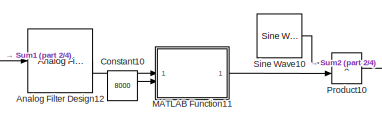
[diagram: root canvas - part 1/4, top center region]
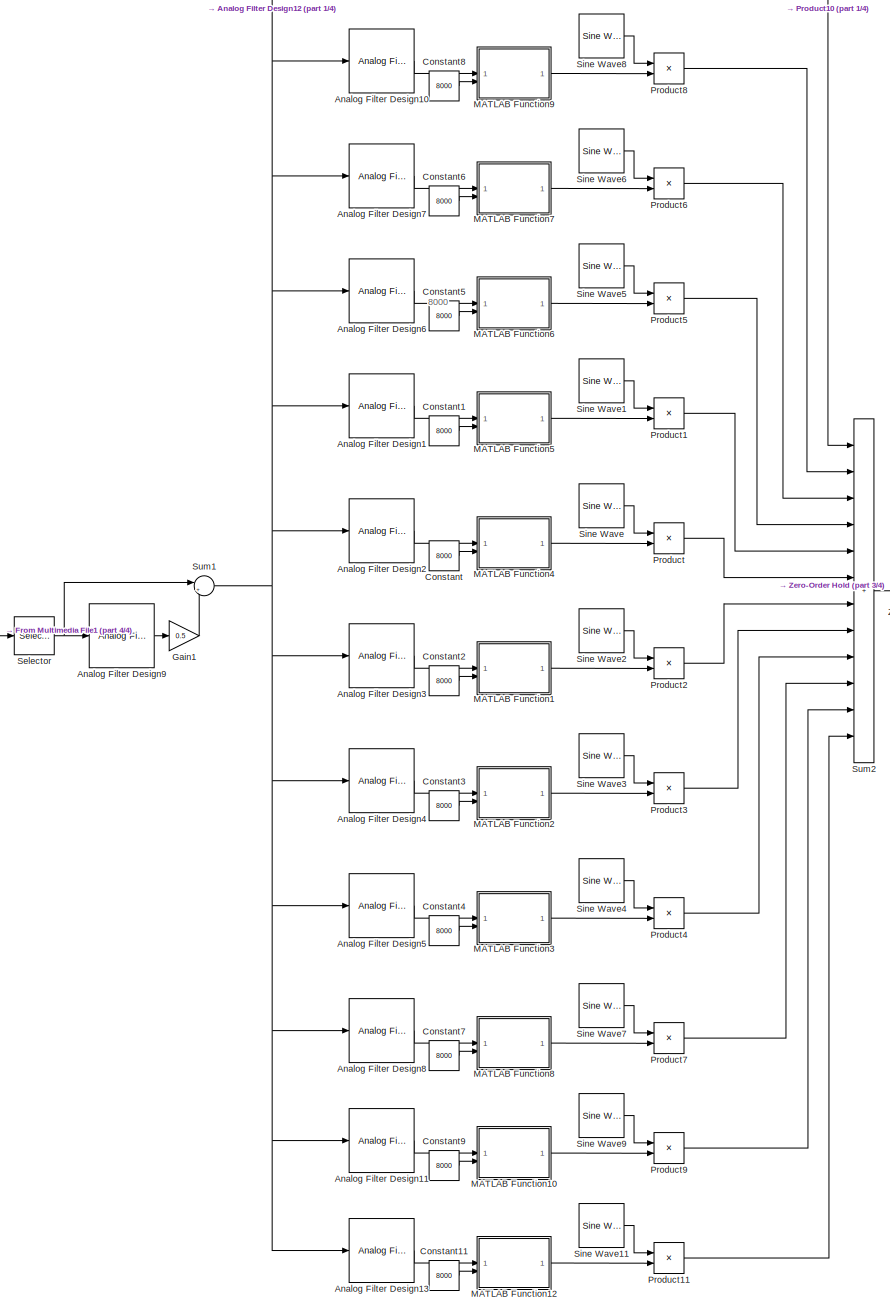
[diagram: root canvas - part 2/4, center side, full height]
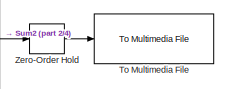
[diagram: root canvas - part 3/4, middle right region]
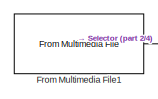
[diagram: root canvas - part 4/4, middle left region]
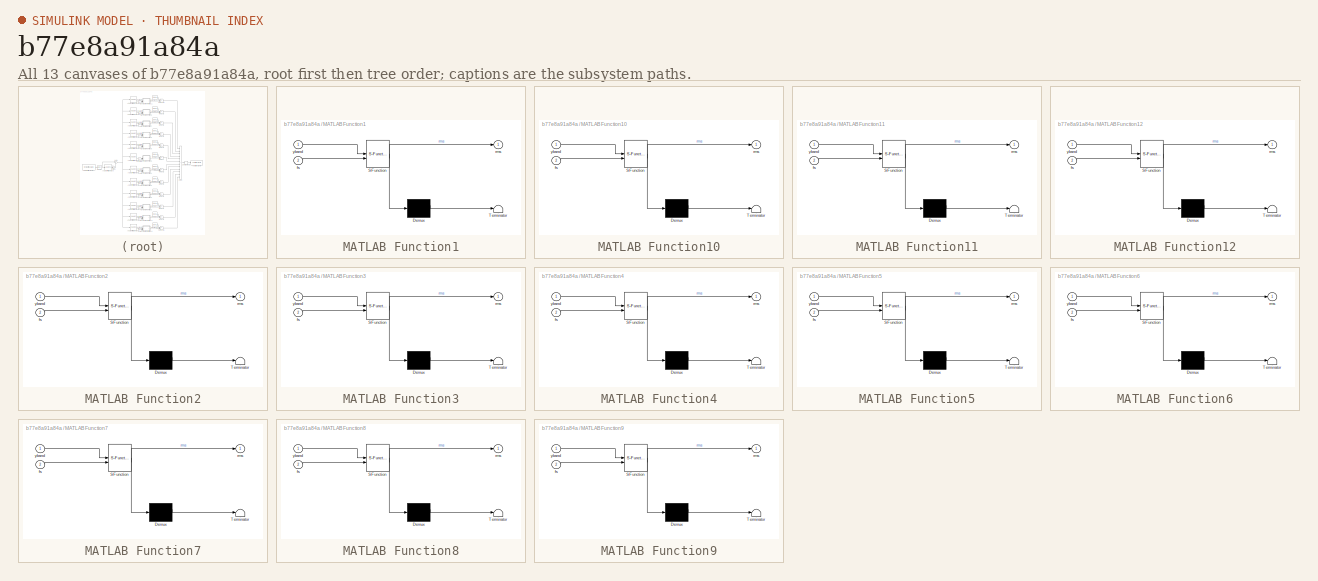
[diagram: thumbnail index - all 13 canvases of the model, root first then tree order]
MODEL slx_b77e8a91a84a
KIND model
CONFIG AbsTol = auto
CONFIG EnableMultiTasking = off
CONFIG FixedStep = auto
CONFIG MaxStep = auto
CONFIG MinStep = auto
CONFIG RelTol = 1e-3
CONFIG SampleTimeConstraint = Unconstrained
CONFIG SolverName = ode23tb
CONFIG StartTime = 0.0
CONFIG StopTime = 3
BLOCK [Reference] Analog Filter Design1  REF=dspfdesign/Analog
Filter Design
  SourceBlock = dspfdesign/Analog\nFilter Design
  SourceType = Analog Filter Design
BLOCK [Reference] Analog Filter Design10  REF=dspfdesign/Analog
Filter Design
  SourceBlock = dspfdesign/Analog\nFilter Design
  SourceType = Analog Filter Design
BLOCK [Reference] Analog Filter Design11  REF=dspfdesign/Analog
Filter Design
  SourceBlock = dspfdesign/Analog\nFilter Design
  SourceType = Analog Filter Design
BLOCK [Reference] Analog Filter Design12  REF=dspfdesign/Analog
Filter Design
  SourceBlock = dspfdesign/Analog\nFilter Design
  SourceType = Analog Filter Design
BLOCK [Reference] Analog Filter Design13  REF=dspfdesign/Analog
Filter Design
  SourceBlock = dspfdesign/Analog\nFilter Design
  SourceType = Analog Filter Design
BLOCK [Reference] Analog Filter Design2  REF=dspfdesign/Analog
Filter Design
  SourceBlock = dspfdesign/Analog\nFilter Design
  SourceType = Analog Filter Design
BLOCK [Reference] Analog Filter Design3  REF=dspfdesign/Analog
Filter Design
  SourceBlock = dspfdesign/Analog\nFilter Design
  SourceType = Analog Filter Design
BLOCK [Reference] Analog Filter Design4  REF=dspfdesign/Analog
Filter Design
  SourceBlock = dspfdesign/Analog\nFilter Design
  SourceType = Analog Filter Design
BLOCK [Reference] Analog Filter Design5  REF=dspfdesign/Analog
Filter Design
  SourceBlock = dspfdesign/Analog\nFilter Design
  SourceType = Analog Filter Design
BLOCK [Reference] Analog Filter Design6  REF=dspfdesign/Analog
Filter Design
  SourceBlock = dspfdesign/Analog\nFilter Design
  SourceType = Analog Filter Design
BLOCK [Reference] Analog Filter Design7  REF=dspfdesign/Analog
Filter Design
  SourceBlock = dspfdesign/Analog\nFilter Design
  SourceType = Analog Filter Design
BLOCK [Reference] Analog Filter Design8  REF=dspfdesign/Analog
Filter Design
  SourceBlock = dspfdesign/Analog\nFilter Design
  SourceType = Analog Filter Design
BLOCK [Reference] Analog Filter Design9  REF=dspfdesign/Analog
Filter Design
  SourceBlock = dspfdesign/Analog\nFilter Design
  SourceType = Analog Filter Design
BLOCK [Constant] Constant
  Value = 8000
BLOCK [Constant] Constant1
  Value = 8000
BLOCK [Constant] Constant10
  Value = 8000
BLOCK [Constant] Constant11
  Value = 8000
BLOCK [Constant] Constant2
  Value = 8000
BLOCK [Constant] Constant3
  Value = 8000
BLOCK [Constant] Constant4
  Value = 8000
BLOCK [Constant] Constant5
  Value = 8000
BLOCK [Constant] Constant6
  Value = 8000
BLOCK [Constant] Constant7
  Value = 8000
BLOCK [Constant] Constant8
  Value = 8000
BLOCK [Constant] Constant9
  Value = 8000
BLOCK [Reference] From Multimedia File1  REF=dspvision/From Multimedia File
  LibrarySourceBlock = dspsrcs4/From Multimedia File
  SourceBlock = dspvision/From Multimedia File
  SourceType = From Multimedia File
BLOCK [Gain] Gain1
  Gain = 0.5
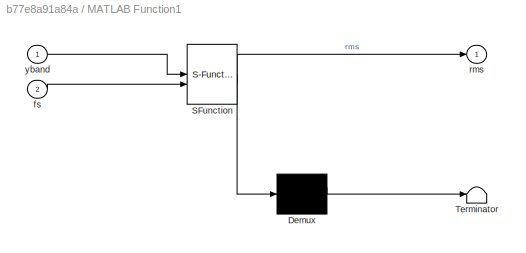
BLOCK [SubSystem] MATLAB Function1
  ErrorFcn = Stateflow.Translate.translate
  PermitHierarchicalResolution = ExplicitOnly
  SFBlockType = MATLAB Function
  TreatAsAtomicUnit = on
BLOCK [Demux] MATLAB Function1/ Demux 
  Outputs = 1
BLOCK [S-Function] MATLAB Function1/ SFunction 
  EnableBusSupport = on
  FunctionName = sf_sfun
  PortCounts = [2 2]
  SFcnIsStateOwnerBlock = off
  SFunctionDeploymentMode = off
  Tag = Stateflow S-Function 1
BLOCK [Terminator] MATLAB Function1/ Terminator 
BLOCK [Inport] MATLAB Function1/fs
  Port = 2
BLOCK [Outport] MATLAB Function1/rms
BLOCK [Inport] MATLAB Function1/yband
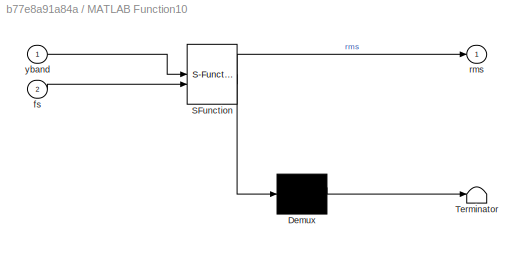
BLOCK [SubSystem] MATLAB Function10
  ErrorFcn = Stateflow.Translate.translate
  PermitHierarchicalResolution = ExplicitOnly
  SFBlockType = MATLAB Function
  TreatAsAtomicUnit = on
BLOCK [Demux] MATLAB Function10/ Demux 
  Outputs = 1
BLOCK [S-Function] MATLAB Function10/ SFunction 
  EnableBusSupport = on
  FunctionName = sf_sfun
  PortCounts = [2 2]
  SFcnIsStateOwnerBlock = off
  SFunctionDeploymentMode = off
  Tag = Stateflow S-Function 10
BLOCK [Terminator] MATLAB Function10/ Terminator 
BLOCK [Inport] MATLAB Function10/fs
  Port = 2
BLOCK [Outport] MATLAB Function10/rms
BLOCK [Inport] MATLAB Function10/yband
BLOCK [SubSystem] MATLAB Function11
  ErrorFcn = Stateflow.Translate.translate
  PermitHierarchicalResolution = ExplicitOnly
  SFBlockType = MATLAB Function
  TreatAsAtomicUnit = on
BLOCK [Demux] MATLAB Function11/ Demux 
  Outputs = 1
BLOCK [S-Function] MATLAB Function11/ SFunction 
  EnableBusSupport = on
  FunctionName = sf_sfun
  PortCounts = [2 2]
  SFcnIsStateOwnerBlock = off
  SFunctionDeploymentMode = off
  Tag = Stateflow S-Function 11
BLOCK [Terminator] MATLAB Function11/ Terminator 
BLOCK [Inport] MATLAB Function11/fs
  Port = 2
BLOCK [Outport] MATLAB Function11/rms
BLOCK [Inport] MATLAB Function11/yband
BLOCK [SubSystem] MATLAB Function12
  ErrorFcn = Stateflow.Translate.translate
  PermitHierarchicalResolution = ExplicitOnly
  SFBlockType = MATLAB Function
  TreatAsAtomicUnit = on
BLOCK [Demux] MATLAB Function12/ Demux 
  Outputs = 1
BLOCK [S-Function] MATLAB Function12/ SFunction 
  EnableBusSupport = on
  FunctionName = sf_sfun
  PortCounts = [2 2]
  SFcnIsStateOwnerBlock = off
  SFunctionDeploymentMode = off
  Tag = Stateflow S-Function 12
BLOCK [Terminator] MATLAB Function12/ Terminator 
BLOCK [Inport] MATLAB Function12/fs
  Port = 2
BLOCK [Outport] MATLAB Function12/rms
BLOCK [Inport] MATLAB Function12/yband
BLOCK [SubSystem] MATLAB Function2
  ErrorFcn = Stateflow.Translate.translate
  PermitHierarchicalResolution = ExplicitOnly
  SFBlockType = MATLAB Function
  TreatAsAtomicUnit = on
BLOCK [Demux] MATLAB Function2/ Demux 
  Outputs = 1
BLOCK [S-Function] MATLAB Function2/ SFunction 
  EnableBusSupport = on
  FunctionName = sf_sfun
  PortCounts = [2 2]
  SFcnIsStateOwnerBlock = off
  SFunctionDeploymentMode = off
  Tag = Stateflow S-Function 2
BLOCK [Terminator] MATLAB Function2/ Terminator 
BLOCK [Inport] MATLAB Function2/fs
  Port = 2
BLOCK [Outport] MATLAB Function2/rms
BLOCK [Inport] MATLAB Function2/yband
BLOCK [SubSystem] MATLAB Function3
  ErrorFcn = Stateflow.Translate.translate
  PermitHierarchicalResolution = ExplicitOnly
  SFBlockType = MATLAB Function
  TreatAsAtomicUnit = on
BLOCK [Demux] MATLAB Function3/ Demux 
  Outputs = 1
BLOCK [S-Function] MATLAB Function3/ SFunction 
  EnableBusSupport = on
  FunctionName = sf_sfun
  PortCounts = [2 2]
  SFcnIsStateOwnerBlock = off
  SFunctionDeploymentMode = off
  Tag = Stateflow S-Function 3
BLOCK [Terminator] MATLAB Function3/ Terminator 
BLOCK [Inport] MATLAB Function3/fs
  Port = 2
BLOCK [Outport] MATLAB Function3/rms
BLOCK [Inport] MATLAB Function3/yband
BLOCK [SubSystem] MATLAB Function4
  ErrorFcn = Stateflow.Translate.translate
  PermitHierarchicalResolution = ExplicitOnly
  SFBlockType = MATLAB Function
  TreatAsAtomicUnit = on
BLOCK [Demux] MATLAB Function4/ Demux 
  Outputs = 1
BLOCK [S-Function] MATLAB Function4/ SFunction 
  EnableBusSupport = on
  FunctionName = sf_sfun
  PortCounts = [2 2]
  SFcnIsStateOwnerBlock = off
  SFunctionDeploymentMode = off
  Tag = Stateflow S-Function 5
BLOCK [Terminator] MATLAB Function4/ Terminator 
BLOCK [Inport] MATLAB Function4/fs
  Port = 2
BLOCK [Outport] MATLAB Function4/rms
BLOCK [Inport] MATLAB Function4/yband
BLOCK [SubSystem] MATLAB Function5
  ErrorFcn = Stateflow.Translate.translate
  PermitHierarchicalResolution = ExplicitOnly
  SFBlockType = MATLAB Function
  TreatAsAtomicUnit = on
BLOCK [Demux] MATLAB Function5/ Demux 
  Outputs = 1
BLOCK [S-Function] MATLAB Function5/ SFunction 
  EnableBusSupport = on
  FunctionName = sf_sfun
  PortCounts = [2 2]
  SFcnIsStateOwnerBlock = off
  SFunctionDeploymentMode = off
  Tag = Stateflow S-Function 6
BLOCK [Terminator] MATLAB Function5/ Terminator 
BLOCK [Inport] MATLAB Function5/fs
  Port = 2
BLOCK [Outport] MATLAB Function5/rms
BLOCK [Inport] MATLAB Function5/yband
BLOCK [SubSystem] MATLAB Function6
  ErrorFcn = Stateflow.Translate.translate
  PermitHierarchicalResolution = ExplicitOnly
  SFBlockType = MATLAB Function
  TreatAsAtomicUnit = on
BLOCK [Demux] MATLAB Function6/ Demux 
  Outputs = 1
BLOCK [S-Function] MATLAB Function6/ SFunction 
  EnableBusSupport = on
  FunctionName = sf_sfun
  PortCounts = [2 2]
  SFcnIsStateOwnerBlock = off
  SFunctionDeploymentMode = off
  Tag = Stateflow S-Function 4
BLOCK [Terminator] MATLAB Function6/ Terminator 
BLOCK [Inport] MATLAB Function6/fs
  Port = 2
BLOCK [Outport] MATLAB Function6/rms
BLOCK [Inport] MATLAB Function6/yband
BLOCK [SubSystem] MATLAB Function7
  ErrorFcn = Stateflow.Translate.translate
  PermitHierarchicalResolution = ExplicitOnly
  SFBlockType = MATLAB Function
  TreatAsAtomicUnit = on
BLOCK [Demux] MATLAB Function7/ Demux 
  Outputs = 1
BLOCK [S-Function] MATLAB Function7/ SFunction 
  EnableBusSupport = on
  FunctionName = sf_sfun
  PortCounts = [2 2]
  SFcnIsStateOwnerBlock = off
  SFunctionDeploymentMode = off
  Tag = Stateflow S-Function 7
BLOCK [Terminator] MATLAB Function7/ Terminator 
BLOCK [Inport] MATLAB Function7/fs
  Port = 2
BLOCK [Outport] MATLAB Function7/rms
BLOCK [Inport] MATLAB Function7/yband
BLOCK [SubSystem] MATLAB Function8
  ErrorFcn = Stateflow.Translate.translate
  PermitHierarchicalResolution = ExplicitOnly
  SFBlockType = MATLAB Function
  TreatAsAtomicUnit = on
BLOCK [Demux] MATLAB Function8/ Demux 
  Outputs = 1
BLOCK [S-Function] MATLAB Function8/ SFunction 
  EnableBusSupport = on
  FunctionName = sf_sfun
  PortCounts = [2 2]
  SFcnIsStateOwnerBlock = off
  SFunctionDeploymentMode = off
  Tag = Stateflow S-Function 8
BLOCK [Terminator] MATLAB Function8/ Terminator 
BLOCK [Inport] MATLAB Function8/fs
  Port = 2
BLOCK [Outport] MATLAB Function8/rms
BLOCK [Inport] MATLAB Function8/yband
BLOCK [SubSystem] MATLAB Function9
  ErrorFcn = Stateflow.Translate.translate
  PermitHierarchicalResolution = ExplicitOnly
  SFBlockType = MATLAB Function
  TreatAsAtomicUnit = on
BLOCK [Demux] MATLAB Function9/ Demux 
  Outputs = 1
BLOCK [S-Function] MATLAB Function9/ SFunction 
  EnableBusSupport = on
  FunctionName = sf_sfun
  PortCounts = [2 2]
  SFcnIsStateOwnerBlock = off
  SFunctionDeploymentMode = off
  Tag = Stateflow S-Function 9
BLOCK [Terminator] MATLAB Function9/ Terminator 
BLOCK [Inport] MATLAB Function9/fs
  Port = 2
BLOCK [Outport] MATLAB Function9/rms
BLOCK [Inport] MATLAB Function9/yband
BLOCK [Product] Product
BLOCK [Product] Product1
BLOCK [Product] Product10
BLOCK [Product] Product11
BLOCK [Product] Product2
BLOCK [Product] Product3
BLOCK [Product] Product4
BLOCK [Product] Product5
BLOCK [Product] Product6
BLOCK [Product] Product7
BLOCK [Product] Product8
BLOCK [Product] Product9
BLOCK [Selector] Selector
  IndexOptions = Select all,Index vector (dialog)
  Indices = [2],1
  InputPortWidth = 3
  NumberOfDimensions = 2
  OutputSizes = 1,1
BLOCK [Reference] Sine Wave  REF=dspsrcs4/Sine Wave
  SourceBlock = dspsrcs4/Sine Wave
  SourceType = Sine Wave
BLOCK [Reference] Sine Wave1  REF=dspsrcs4/Sine Wave
  SourceBlock = dspsrcs4/Sine Wave
  SourceType = Sine Wave
BLOCK [Reference] Sine Wave10  REF=dspsrcs4/Sine Wave
  SourceBlock = dspsrcs4/Sine Wave
  SourceType = Sine Wave
BLOCK [Reference] Sine Wave11  REF=dspsrcs4/Sine Wave
  SourceBlock = dspsrcs4/Sine Wave
  SourceType = Sine Wave
BLOCK [Reference] Sine Wave2  REF=dspsrcs4/Sine Wave
  SourceBlock = dspsrcs4/Sine Wave
  SourceType = Sine Wave
BLOCK [Reference] Sine Wave3  REF=dspsrcs4/Sine Wave
  SourceBlock = dspsrcs4/Sine Wave
  SourceType = Sine Wave
BLOCK [Reference] Sine Wave4  REF=dspsrcs4/Sine Wave
  SourceBlock = dspsrcs4/Sine Wave
  SourceType = Sine Wave
BLOCK [Reference] Sine Wave5  REF=dspsrcs4/Sine Wave
  SourceBlock = dspsrcs4/Sine Wave
  SourceType = Sine Wave
BLOCK [Reference] Sine Wave6  REF=dspsrcs4/Sine Wave
  SourceBlock = dspsrcs4/Sine Wave
  SourceType = Sine Wave
BLOCK [Reference] Sine Wave7  REF=dspsrcs4/Sine Wave
  SourceBlock = dspsrcs4/Sine Wave
  SourceType = Sine Wave
BLOCK [Reference] Sine Wave8  REF=dspsrcs4/Sine Wave
  SourceBlock = dspsrcs4/Sine Wave
  SourceType = Sine Wave
BLOCK [Reference] Sine Wave9  REF=dspsrcs4/Sine Wave
  SourceBlock = dspsrcs4/Sine Wave
  SourceType = Sine Wave
BLOCK [Sum] Sum1
  Inputs = |++
BLOCK [Sum] Sum2
  IconShape = rectangular
  Inputs = ++++++++++++
BLOCK [Reference] To Multimedia File  REF=dspvision/To Multimedia File
  LibrarySourceBlock = dspsnks4/To Multimedia File
  SourceBlock = dspvision/To Multimedia File
  SourceType = To Multimedia File
BLOCK [ZeroOrderHold] Zero-Order Hold
  SampleTime = -1
ANNOTATION (root): 8000
LINE Analog Filter Design10:1 -> MATLAB Function9:1
LINE Analog Filter Design11:1 -> MATLAB Function10:1
LINE Analog Filter Design12:1 -> MATLAB Function11:1
LINE Analog Filter Design13:1 -> MATLAB Function12:1
LINE Analog Filter Design1:1 -> MATLAB Function5:1
LINE Analog Filter Design2:1 -> MATLAB Function4:1
LINE Analog Filter Design3:1 -> MATLAB Function1:1
LINE Analog Filter Design4:1 -> MATLAB Function2:1
LINE Analog Filter Design5:1 -> MATLAB Function3:1
LINE Analog Filter Design6:1 -> MATLAB Function6:1
LINE Analog Filter Design7:1 -> MATLAB Function7:1
LINE Analog Filter Design8:1 -> MATLAB Function8:1
LINE Analog Filter Design9:1 -> Gain1:1
LINE Constant10:1 -> MATLAB Function11:2
LINE Constant11:1 -> MATLAB Function12:2
LINE Constant1:1 -> MATLAB Function5:2
LINE Constant2:1 -> MATLAB Function1:2
LINE Constant3:1 -> MATLAB Function2:2
LINE Constant4:1 -> MATLAB Function3:2
LINE Constant5:1 -> MATLAB Function6:2
LINE Constant6:1 -> MATLAB Function7:2
LINE Constant7:1 -> MATLAB Function8:2
LINE Constant8:1 -> MATLAB Function9:2
LINE Constant9:1 -> MATLAB Function10:2
LINE Constant:1 -> MATLAB Function4:2
LINE From Multimedia File1:1 -> Selector:1
LINE Gain1:1 -> Sum1:2
LINE MATLAB Function10:1 -> Product9:2
LINE MATLAB Function11:1 -> Product10:2
LINE MATLAB Function12:1 -> Product11:2
LINE MATLAB Function1:1 -> Product2:2
LINE MATLAB Function2:1 -> Product3:2
LINE MATLAB Function3:1 -> Product4:2
LINE MATLAB Function4:1 -> Product:2
LINE MATLAB Function5:1 -> Product1:2
LINE MATLAB Function6:1 -> Product5:2
LINE MATLAB Function7:1 -> Product6:2
LINE MATLAB Function8:1 -> Product7:2
LINE MATLAB Function9:1 -> Product8:2
LINE Product10:1 -> Sum2:1
LINE Product11:1 -> Sum2:12
LINE Product1:1 -> Sum2:5
LINE Product2:1 -> Sum2:7
LINE Product3:1 -> Sum2:8
LINE Product4:1 -> Sum2:9
LINE Product5:1 -> Sum2:4
LINE Product6:1 -> Sum2:3
LINE Product7:1 -> Sum2:10
LINE Product8:1 -> Sum2:2
LINE Product9:1 -> Sum2:11
LINE Product:1 -> Sum2:6
NET Selector:1 -> Analog Filter Design9:1, Sum1:1
LINE Sine Wave10:1 -> Product10:1
LINE Sine Wave11:1 -> Product11:1
LINE Sine Wave1:1 -> Product1:1
LINE Sine Wave2:1 -> Product2:1
LINE Sine Wave3:1 -> Product3:1
LINE Sine Wave4:1 -> Product4:1
LINE Sine Wave5:1 -> Product5:1
LINE Sine Wave6:1 -> Product6:1
LINE Sine Wave7:1 -> Product7:1
LINE Sine Wave8:1 -> Product8:1
LINE Sine Wave9:1 -> Product9:1
LINE Sine Wave:1 -> Product:1
NET Sum1:1 -> Analog Filter Design10:1, Analog Filter Design11:1, Analog Filter Design12:1, Analog Filter Design13:1, Analog Filter Design1:1, Analog Filter Design2:1, Analog Filter Design3:1, Analog Filter Design4:1, Analog Filter Design5:1, Analog Filter Design6:1, Analog Filter Design7:1, Analog Filter Design8:1
LINE Sum2:1 -> Zero-Order Hold:1
LINE Zero-Order Hold:1 -> To Multimedia File:1
note: NET lines group one-source signal fan-out (src -> all destinations, sorted); 1:1 wires keep LINE
CHART MATLAB Function2 states=1 transitions=1
  STATE_LABEL 'eML_blk_kernel()'
  STATE_LABEL "SCRIPT:\nfunction rms = getrms(yband,fs)\n\n    y = abs(yband); %rectifying it makes it sound bad\n\n    [b,a] = butter(2,400/(fs/2));\n\n    z = filter(b,a,y); %this filter also makes it sound bad\n\n    windowsize = round(4/(1000/fs)); %rms computed every 4ms = windowsize samples\n\n    [yupper,ylower] = envelope(yband,windowsize,'rms'); %changed to yband here\n\n    %envelope(z,windowsize,'rms');\n\n    rms =...<+12ch>"  <repeated x12 — deduplicated; at blocks: MATLAB Function2, MATLAB Function3, MATLAB Function6, MATLAB Function4, MATLAB Function5, MATLAB Function7, MATLAB Function8, MATLAB Function9, MATLAB Function10, MATLAB Function11, MATLAB Function1, MATLAB Function12>
CHART MATLAB Function3 states=1 transitions=1
  STATE_LABEL 'eML_blk_kernel()'
CHART MATLAB Function6 states=1 transitions=1
  STATE_LABEL 'eML_blk_kernel()'
CHART MATLAB Function4 states=1 transitions=1
  STATE_LABEL 'eML_blk_kernel()'
CHART MATLAB Function5 states=1 transitions=1
  STATE_LABEL 'eML_blk_kernel()'
CHART MATLAB Function7 states=1 transitions=1
  STATE_LABEL 'eML_blk_kernel()'
CHART MATLAB Function8 states=1 transitions=1
  STATE_LABEL 'eML_blk_kernel()'
CHART MATLAB Function9 states=1 transitions=1
  STATE_LABEL 'eML_blk_kernel()'
CHART MATLAB Function10 states=1 transitions=1
  STATE_LABEL 'eML_blk_kernel()'
CHART MATLAB Function11 states=1 transitions=1
  STATE_LABEL 'eML_blk_kernel()'
CHART MATLAB Function1 states=1 transitions=1
  STATE_LABEL 'eML_blk_kernel()'
CHART MATLAB Function12 states=1 transitions=1
  STATE_LABEL 'eML_blk_kernel()'
CHART  states=0 transitions=0
CHART  states=0 transitions=0
CHART  states=0 transitions=0
CHART  states=0 transitions=0
CHART  states=0 transitions=0
CHART  states=0 transitions=0
CHART  states=0 transitions=0
CHART  states=0 transitions=0
CHART  states=0 transitions=0
CHART  states=0 transitions=0
CHART  states=0 transitions=0
CHART  states=0 transitions=0
